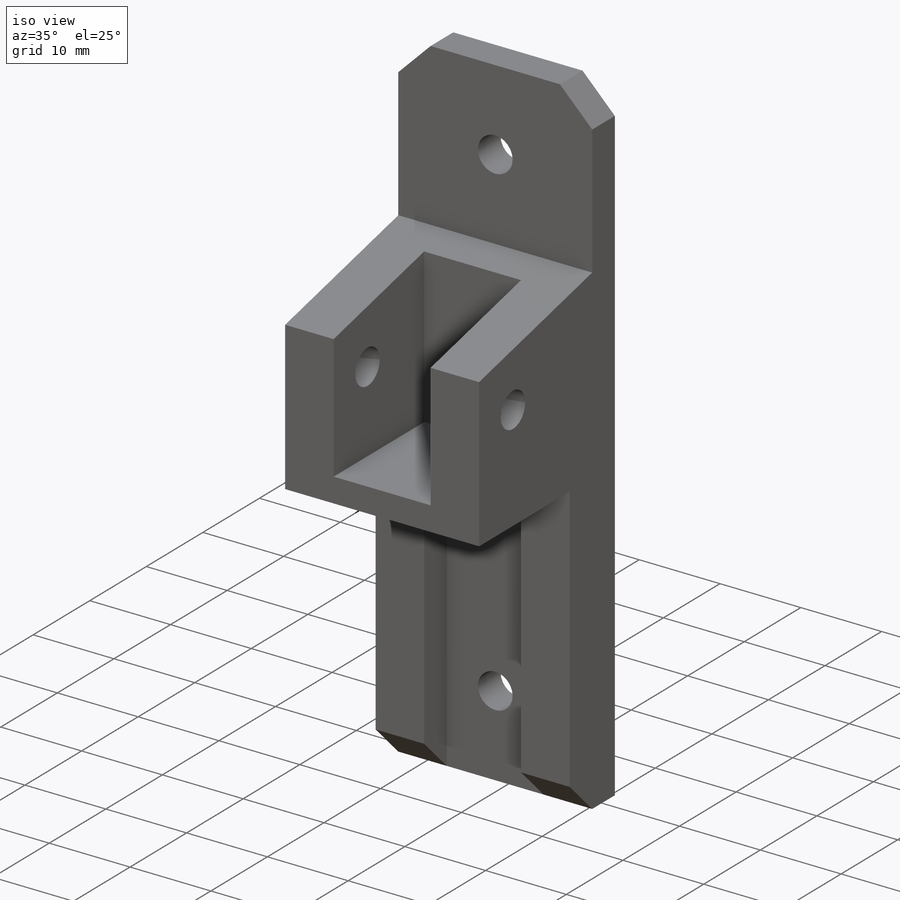
[diagram: iso view]
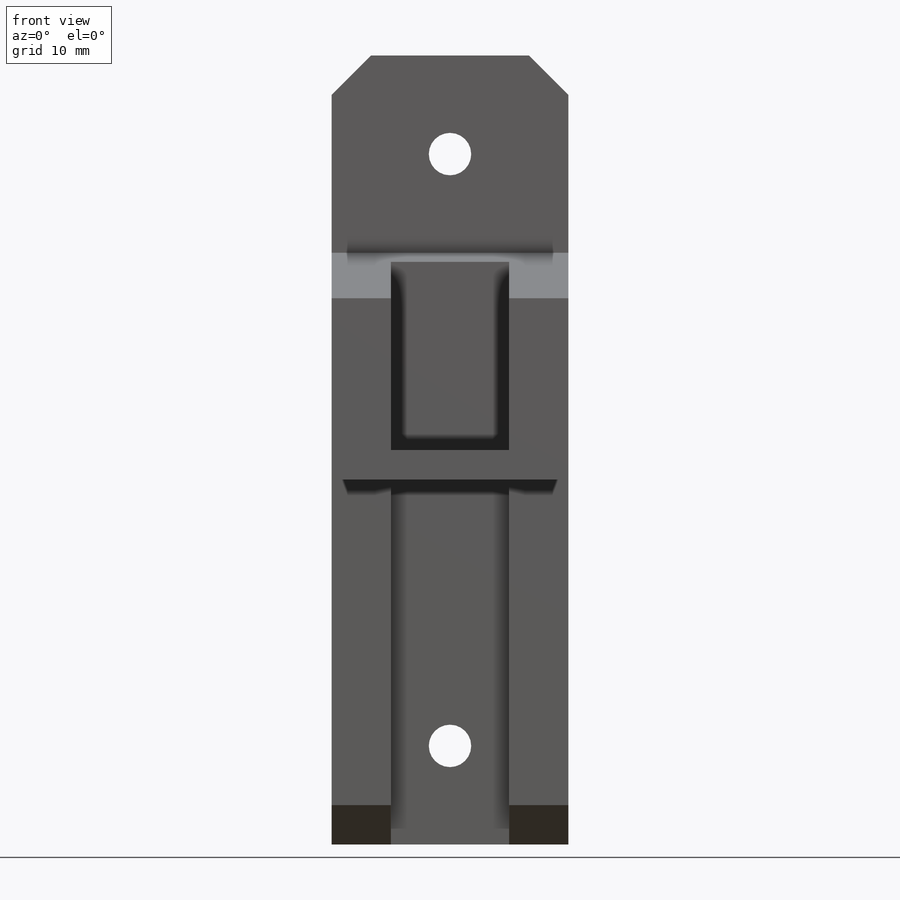
[diagram: front view]
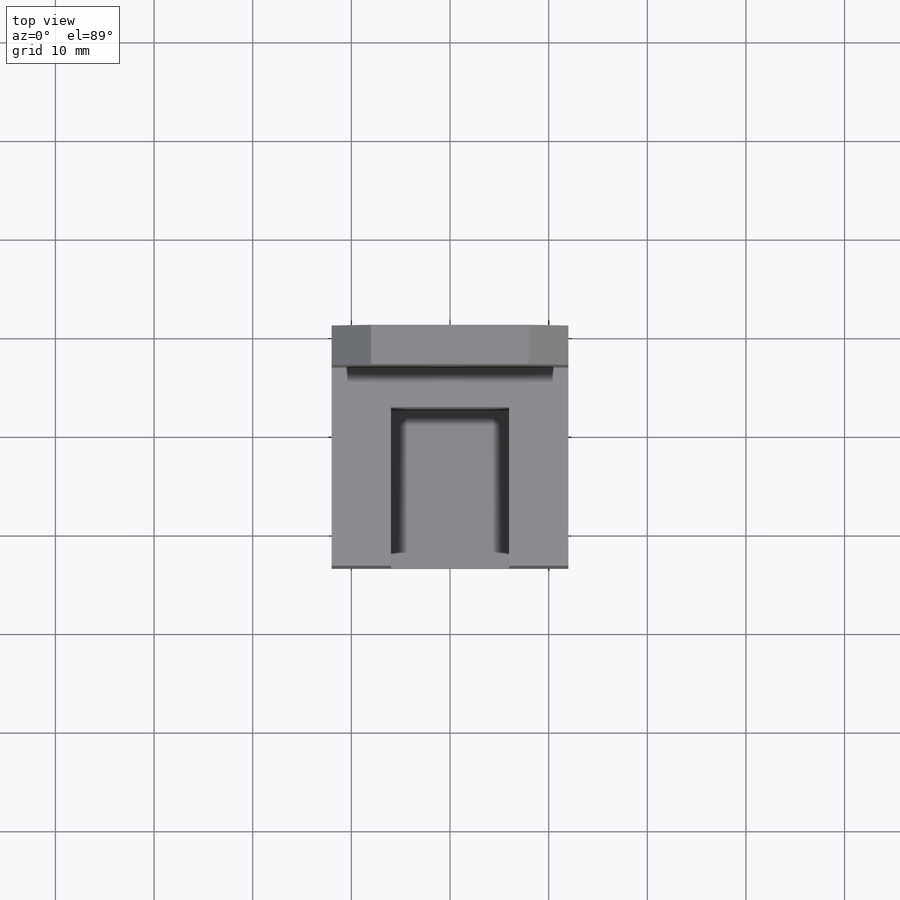
[diagram: top view]
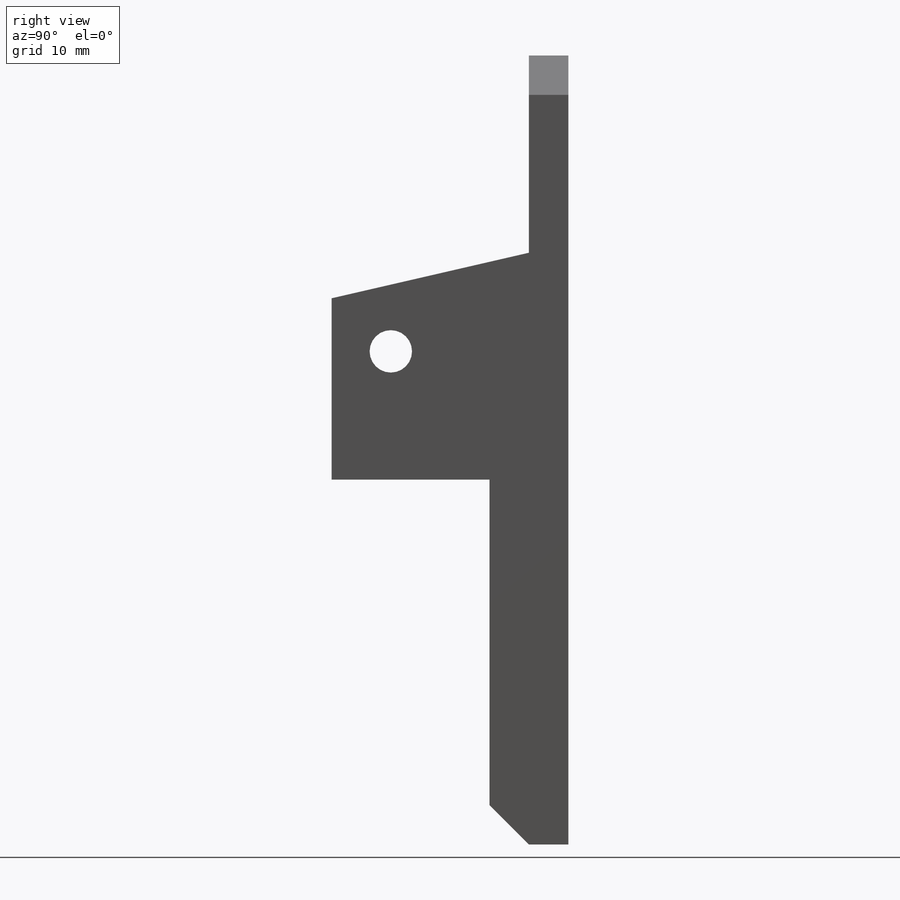
[diagram: right view]
SOLIDWORKS PART (.sldprt)
format: sldprt  version: not decoded by parser v0  size: 297,984 bytes
history: native  units: mm
features: sketch x9, extrude x4, plane x3, chamfer x2, hole x2, material x1, cut_extrude x1 (+9 scaffold rows collapsed)
feature tree (31):
  scaffold x9  (default folders/planes/origin — collapsed)
  material  "Matériau <non spécifié>"
  plane  "Plan de face"
  plane  "Plan de dessus"
  plane  "Plan de droite"
  sketch  "Esquisse1"  dims[c1.D1=~66.598185mm c1.D2=~38.785674mm c2.D1=80.0mm c2.D2=24.0mm]
  extrude  "Boss.-Extru.1"  Depth=4mm
  sketch  "Esquisse2"  dims[c1.D1=~18.096214mm c1.D2=24.0mm c2.D1=23.0mm c2.D2=20.0mm c2.D3=6.0mm c2.D4=6.0mm c2.D5=3.0mm c2.D6=12.0mm]
  extrude  "Boss.-Extru.2"  Depth=4mm
  sketch  "Esquisse3"  dims[D1=6.0mm D2=6.0mm D3=3.0mm]
  extrude  "Boss.-Extru.3"  Depth=16mm
  sketch  "Esquisse4"  dims[D1=6.0mm D2=6.0mm]
  extrude  "Boss.-Extru.4"  Depth=4mm
  chamfer  "Chanfrein1"  Distance=4mm Angle=45deg
  chamfer  "Chanfrein2"  Distance=20mm Angle=13deg
  hole  "Dégagement M31"  Diameter=3.4mm Depth=24.00005mm
  sketch  "Esquisse6"  dims[D1=18.0mm D2=50.0mm]
  sketch  "Esquisse7"  dims[hole-wizard template sketch: 60 standard entries collapsed; hole parameters kept: c18.Profondeur du perçage jusqu'au prochain=~24.00005mm]
  hole  "Dégagement M42"  Diameter=4.3mm Depth=4mm
  sketch  "Esquisse9"  dims[D1=10.0mm D2=10.0mm]
  sketch  "Esquisse10"  dims[hole-wizard template sketch: 59 standard entries collapsed; hole parameters kept: c18.Diamètre du perçage jusqu'au prochain=4.3mm c18.Profondeur du perçage jusqu'au prochain=4.0mm]
  sketch  "Esquisse11"  dims[D1=6.4mm]
  cut_extrude  "Enlèv. mat.-Extru.1"  Depth=3mm
decode coverage: 18 of 18 modeling features carry decoded parameters
note: ~ marks probable driven/reference dimensions
note: suppression state not decoded; provenance and decode notes live in map.json
